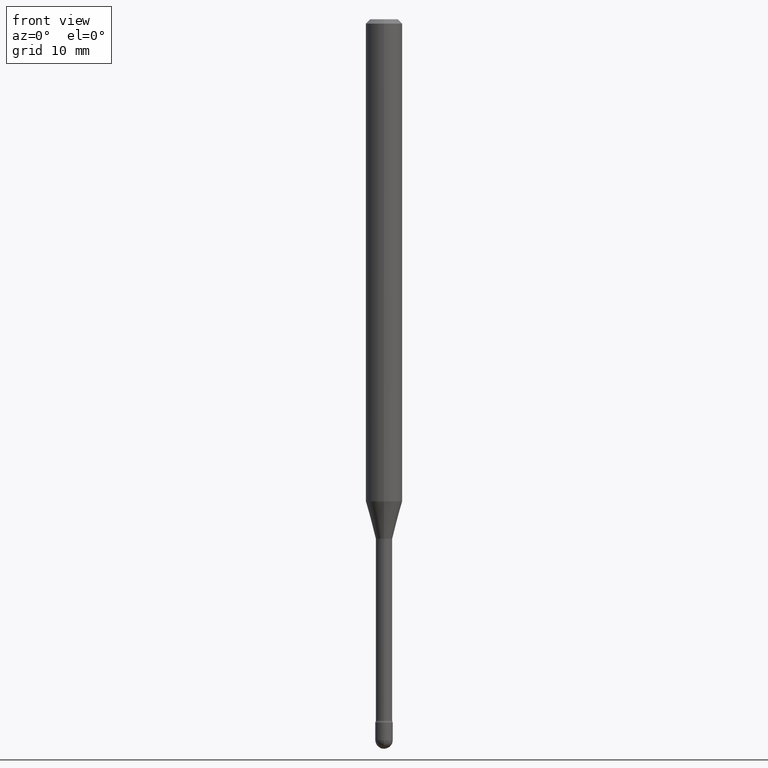
[diagram: clean part render]
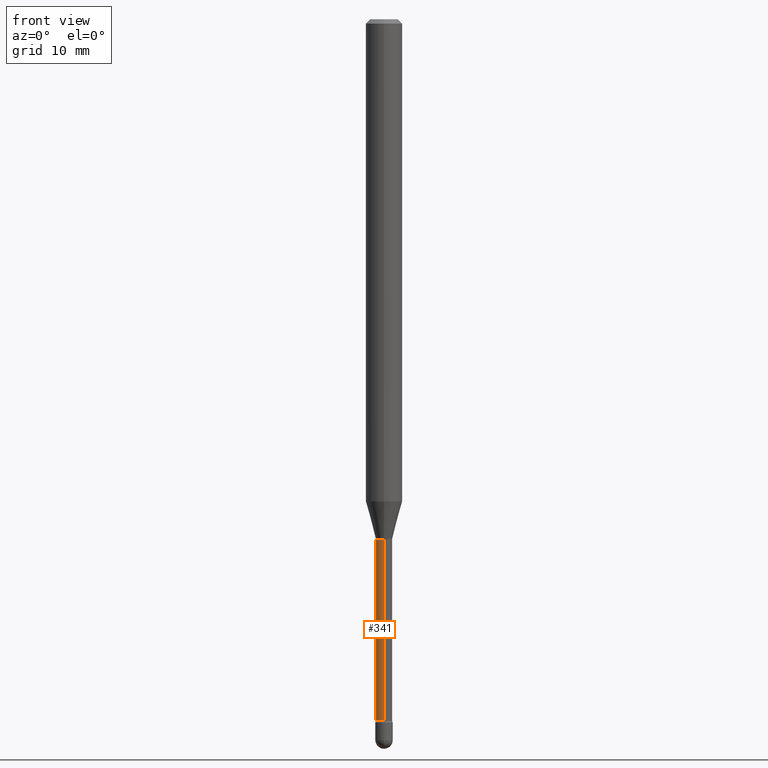
[diagram: same view with one face highlighted and labeled with its STEP entity id]
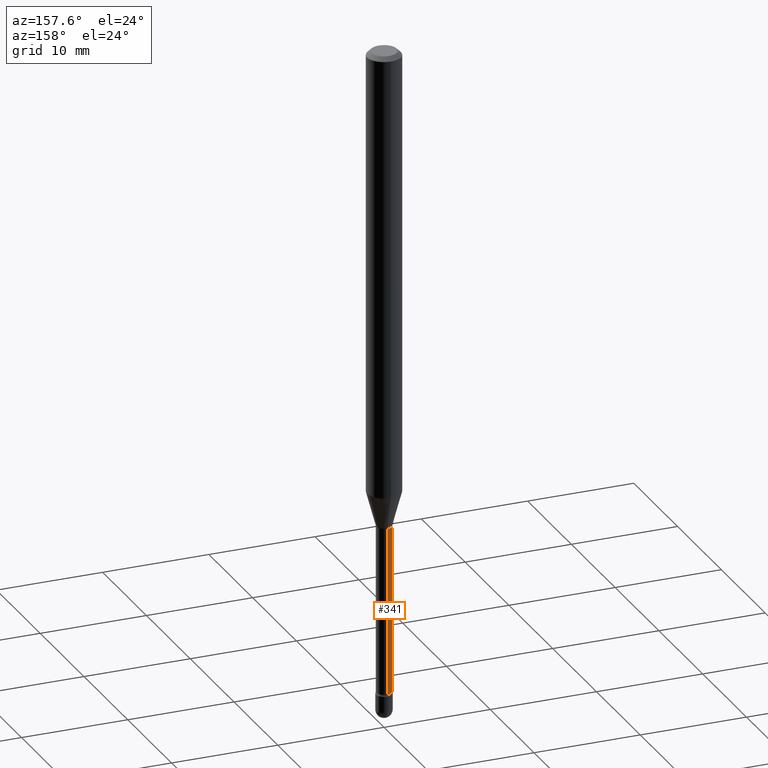
[diagram: same view with one face highlighted and labeled with its STEP entity id]
A machine part, front view. The second image highlights one B-rep face of the part: STEP entity #341.
A second angle (auxiliary view) of the same face is appended — the face is thin or edge-on in the first view.
In plain terms, the highlighted cylindrical surface (edge-blend (fillet) strip) has radius 0.7163 mm, axis along (-0, 0, 1).
Its self-contained STEP definition (entity closure, byte-faithful):
#5 = VERTEX_POINT ( 'NONE', #282 ) ;
#15 = DIRECTION ( 'NONE',  ( -2.445430871415166747E-29, 3.491535663592855480E-15, 1.000000000000000000 ) ) ;
#20 = EDGE_CURVE ( 'NONE', #223, #5, #414, .T. ) ;
#40 = LINE ( 'NONE', #562, #351 ) ;
#45 = EDGE_LOOP ( 'NONE', ( #426, #355, #379, #136 ) ) ;
#46 = DIRECTION ( 'NONE',  ( -2.445430871415166747E-29, 3.491535663592855480E-15, 1.000000000000000000 ) ) ;
#68 = DIRECTION ( 'NONE',  ( -2.445430871415166747E-29, 3.491535663592855086E-15, 1.000000000000000000 ) ) ;
#82 = EDGE_CURVE ( 'NONE', #344, #5, #423, .T. ) ;
#85 = FACE_OUTER_BOUND ( 'NONE', #45, .T. ) ;
#101 = CARTESIAN_POINT ( 'NONE',  ( -1.969195475106951401E-16, -0.02820000000000855503, -2.402875394747777893 ) ) ;
#110 = DIRECTION ( 'NONE',  ( -2.445430871415166747E-29, 3.491535663592855480E-15, 1.000000000000000000 ) ) ;
#115 = CARTESIAN_POINT ( 'NONE',  ( -1.969195475107532693E-16, -0.02820000000000008264, 5.765347046045648970E-16 ) ) ;
#136 = ORIENTED_EDGE ( 'NONE', *, *, #20, .F. ) ;
#173 = VECTOR ( 'NONE', #383, 39.37007874015748143 ) ;
#178 = AXIS2_PLACEMENT_3D ( 'NONE', #432, #46, #219 ) ;
#202 = CARTESIAN_POINT ( 'NONE',  ( 2.067679361062483248E-16, 0.02819999999999178025, -2.402875394747777893 ) ) ;
#211 = CARTESIAN_POINT ( 'NONE',  ( 5.876065670480121665E-29, -8.389725135931628205E-15, -2.402875394747777893 ) ) ;
#219 = DIRECTION ( 'NONE',  ( -6.982962677686265922E-15, -1.000000000000000000, 3.491535663592856663E-15 ) ) ;
#223 = VERTEX_POINT ( 'NONE', #536 ) ;
#241 = AXIS2_PLACEMENT_3D ( 'NONE', #537, #15, #358 ) ;
#261 = CYLINDRICAL_SURFACE ( 'NONE', #178, 0.02820000000000008264 ) ;
#282 = CARTESIAN_POINT ( 'NONE',  ( -1.969195475107091177E-16, -0.02820000000000622356, -1.781974787463811216 ) ) ;
#287 = DIRECTION ( 'NONE',  ( -6.982962677686265922E-15, -1.000000000000000000, 0.000000000000000000 ) ) ;
#341 = ADVANCED_FACE ( 'NONE', ( #85 ), #261, .T. ) ;
#344 = VERTEX_POINT ( 'NONE', #101 ) ;
#351 = VECTOR ( 'NONE', #68, 39.37007874015748143 ) ;
#355 = ORIENTED_EDGE ( 'NONE', *, *, #479, .T. ) ;
#358 = DIRECTION ( 'NONE',  ( -6.982962677686265133E-15, -1.000000000000000000, 0.000000000000000000 ) ) ;
#379 = ORIENTED_EDGE ( 'NONE', *, *, #82, .T. ) ;
#383 = DIRECTION ( 'NONE',  ( -2.445430871415166747E-29, 3.491535663592855086E-15, 1.000000000000000000 ) ) ;
#414 = CIRCLE ( 'NONE', #241, 0.02820000000000000284 ) ;
#420 = VERTEX_POINT ( 'NONE', #202 ) ;
#423 = LINE ( 'NONE', #115, #173 ) ;
#426 = ORIENTED_EDGE ( 'NONE', *, *, #526, .F. ) ;
#432 = CARTESIAN_POINT ( 'NONE',  ( -1.169113584055446105E-44, 1.669184350826100908E-30, 4.780733988912460139E-16 ) ) ;
#433 = AXIS2_PLACEMENT_3D ( 'NONE', #211, #110, #287 ) ;
#479 = EDGE_CURVE ( 'NONE', #420, #344, #557, .T. ) ;
#526 = EDGE_CURVE ( 'NONE', #420, #223, #40, .T. ) ;
#536 = CARTESIAN_POINT ( 'NONE',  ( 2.003730514844073879E-16, 0.02819999999999377865, -1.781974787463811216 ) ) ;
#537 = CARTESIAN_POINT ( 'NONE',  ( 4.357696157347484531E-29, -6.221828522053195731E-15, -1.781974787463811216 ) ) ;
#557 = CIRCLE ( 'NONE', #433, 0.02820000000000016938 ) ;
#562 = CARTESIAN_POINT ( 'NONE',  ( 2.003730514843488150E-16, 0.02820000000000008264, 3.796120931779272295E-16 ) ) ;